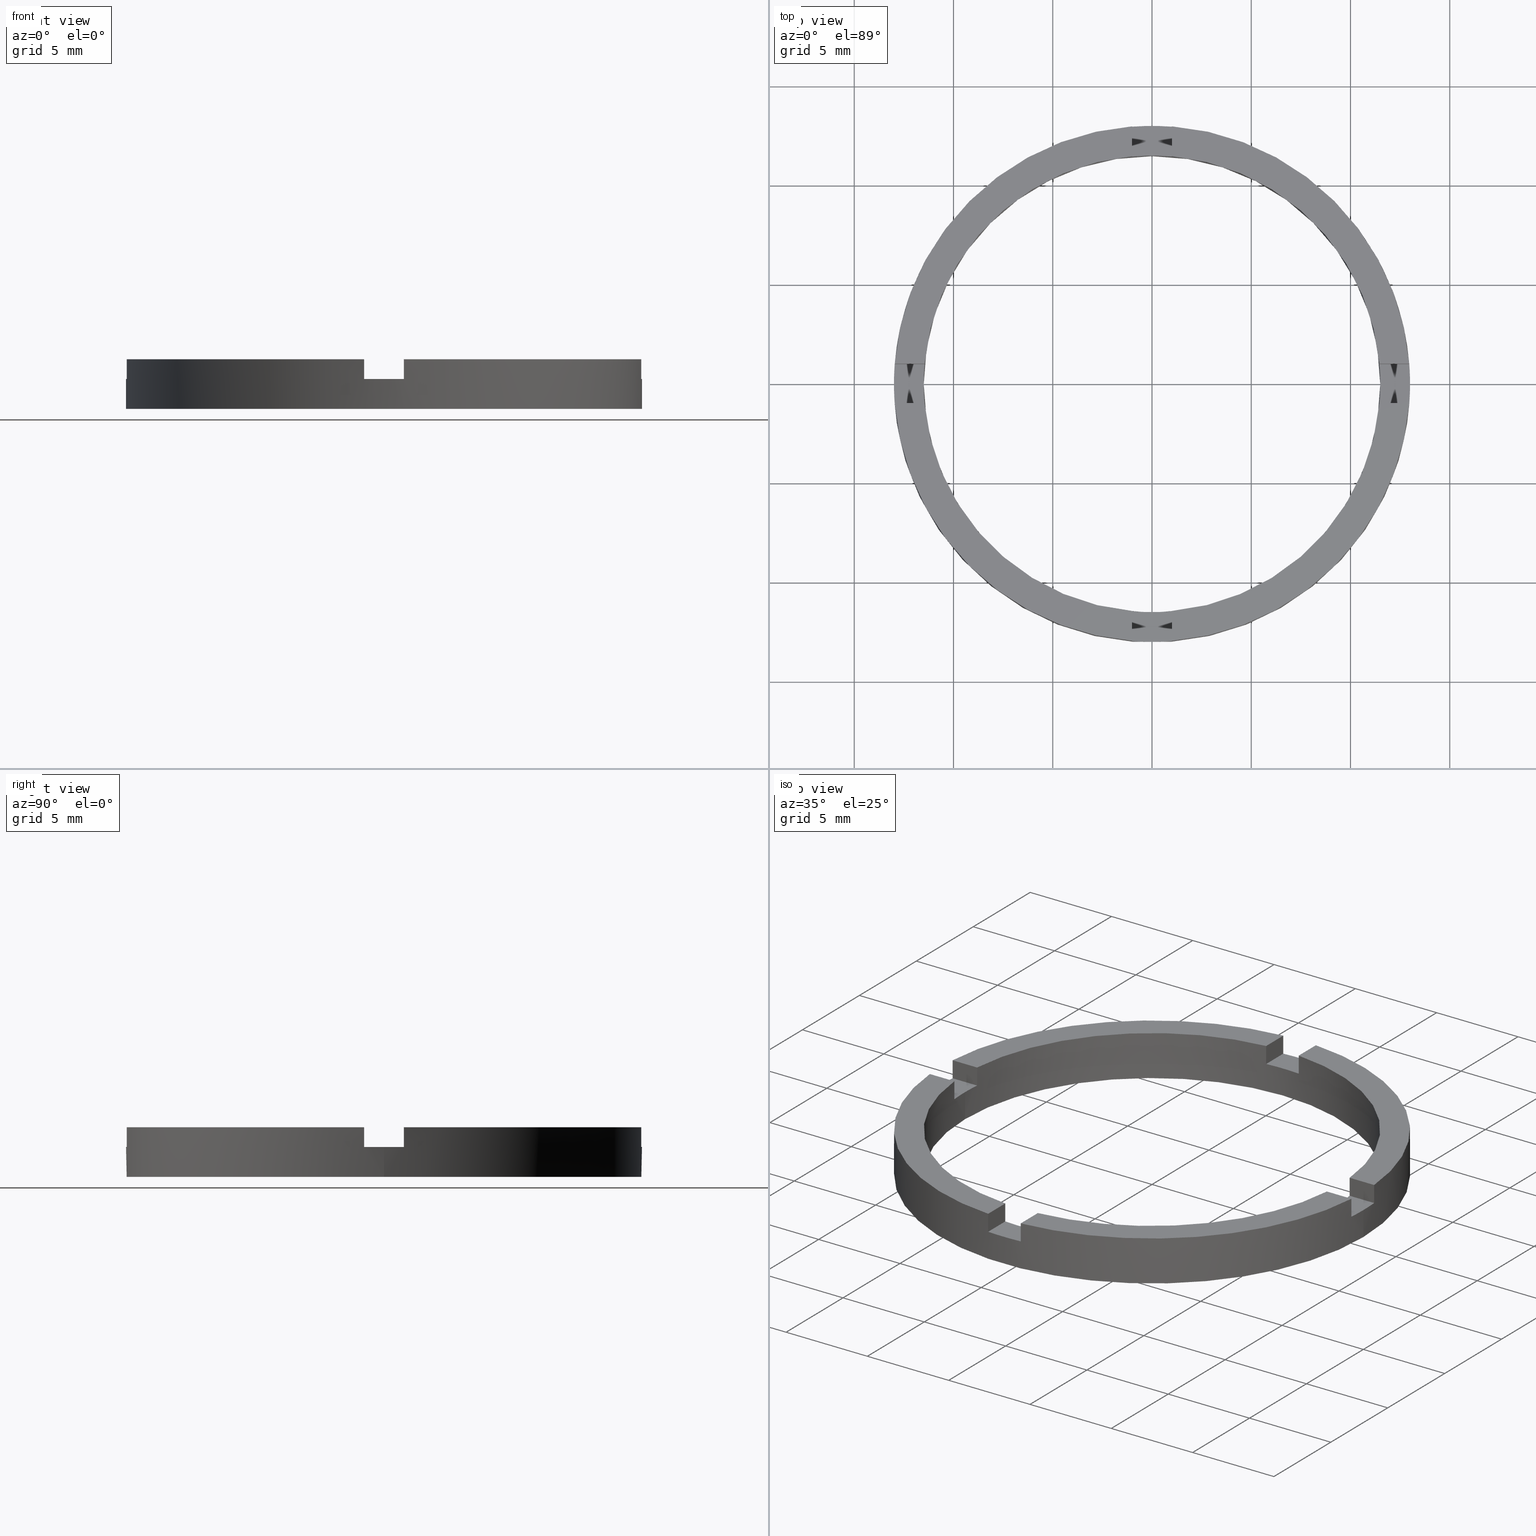
[diagram: canonical four-view strip — front | top / right | iso, engineering-drawing reading convention]
A machine part, canonical four-view strip (front | top / right | iso — engineering-drawing reading convention). The complete STEP part file that produces these views, byte-faithful:
ISO-10303-21;
HEADER;
FILE_DESCRIPTION (( 'STEP AP203' ),
    '1' );
FILE_NAME ('514059.step',
    '2024-12-26T02:33:38',
    ( 'MSI' ),
    ( '' ),
    'SwSTEP 2.0',
    'SolidWorks 2020',
    '' );
FILE_SCHEMA (( 'CONFIG_CONTROL_DESIGN' ));
ENDSEC;

DATA;
#1 = DIRECTION ( 'NONE',  ( 1.000000000000000000, 0.000000000000000000, -0.000000000000000000 ) ) ;
#2 = VECTOR ( 'NONE', #659, 1000.000000000000000 ) ;
#3 = VECTOR ( 'NONE', #56, 1000.000000000000000 ) ;
#4 = CARTESIAN_POINT ( 'NONE',  ( -12.96148139681571898, 0.9999999999999776845, 1.500000000000000000 ) ) ;
#5 = LINE ( 'NONE', #248, #3 ) ;
#6 = CIRCLE ( 'NONE', #585, 12.99999999999999822 ) ;
#7 = ADVANCED_FACE ( 'NONE', ( #716 ), #245, .F. ) ;
#8 = APPROVAL_ROLE ( '' ) ;
#9 = LINE ( 'NONE', #24, #232 ) ;
#10 = FACE_OUTER_BOUND ( 'NONE', #440, .T. ) ;
#11 = UNCERTAINTY_MEASURE_WITH_UNIT (LENGTH_MEASURE( 1.000000000000000082E-05 ), #596, 'distance_accuracy_value', 'NONE');
#12 = VECTOR ( 'NONE', #390, 1000.000000000000000 ) ;
#13 = CARTESIAN_POINT ( 'NONE',  ( 0.000000000000000000, 0.000000000000000000, 2.500000000000000000 ) ) ;
#14 = CIRCLE ( 'NONE', #321, 11.50000000000000000 ) ;
#15 = DIRECTION ( 'NONE',  ( 0.000000000000000000, 0.000000000000000000, -1.000000000000000000 ) ) ;
#16 = ADVANCED_FACE ( 'NONE', ( #462 ), #176, .T. ) ;
#17 = LINE ( 'NONE', #649, #2 ) ;
#18 = AXIS2_PLACEMENT_3D ( 'NONE', #191, #681, #197 ) ;
#19 = DIRECTION ( 'NONE',  ( -1.000000000000000000, 0.000000000000000000, 0.000000000000000000 ) ) ;
#20 = CARTESIAN_POINT ( 'NONE',  ( 0.000000000000000000, 0.000000000000000000, 2.500000000000000000 ) ) ;
#21 = DIRECTION ( 'NONE',  ( -0.000000000000000000, 0.000000000000000000, 1.000000000000000000 ) ) ;
#22 = DIRECTION ( 'NONE',  ( 1.000000000000000000, 0.000000000000000000, -0.000000000000000000 ) ) ;
#23 = CARTESIAN_POINT ( 'NONE',  ( 0.9999999999998352429, -3.000000000000176303, 2.500000000000000000 ) ) ;
#24 = CARTESIAN_POINT ( 'NONE',  ( 12.96148139681570655, -1.000000000000159872, 2.500000000000000000 ) ) ;
#25 = EDGE_CURVE ( 'NONE', #164, #709, #720, .T. ) ;
#26 = ADVANCED_FACE ( 'NONE', ( #194 ), #193, .T. ) ;
#27 = CARTESIAN_POINT ( 'NONE',  ( 0.000000000000000000, 0.000000000000000000, 0.000000000000000000 ) ) ;
#28 = LINE ( 'NONE', #639, #557 ) ;
#29 = CARTESIAN_POINT ( 'NONE',  ( 11.50000000000000000, 1.408343819019456176E-15, 1.500000000000000000 ) ) ;
#30 = CIRCLE ( 'NONE', #567, 12.99999999999999822 ) ;
#31 = CARTESIAN_POINT ( 'NONE',  ( -1.000000000000024647, 12.96148139681571543, 2.500000000000000000 ) ) ;
#32 = AXIS2_PLACEMENT_3D ( 'NONE', #295, #398, #591 ) ;
#33 = VECTOR ( 'NONE', #442, 1000.000000000000000 ) ;
#34 = CARTESIAN_POINT ( 'NONE',  ( 0.000000000000000000, 0.000000000000000000, 2.500000000000000000 ) ) ;
#35 = LINE ( 'NONE', #359, #33 ) ;
#36 = CARTESIAN_POINT ( 'NONE',  ( -3.000000000000179412, -1.000000000000020650, 1.500000000000000000 ) ) ;
#37 = CARTESIAN_POINT ( 'NONE',  ( -12.96148139681571543, -1.000000000000022427, 2.500000000000000000 ) ) ;
#38 = VECTOR ( 'NONE', #236, 1000.000000000000000 ) ;
#39 = VECTOR ( 'NONE', #267, 1000.000000000000000 ) ;
#40 = CC_DESIGN_DATE_AND_TIME_ASSIGNMENT ( #405, #587, ( #688 ) ) ;
#41 = CIRCLE ( 'NONE', #481, 11.50000000000000000 ) ;
#42 = AXIS2_PLACEMENT_3D ( 'NONE', #749, #386, #460 ) ;
#43 = LINE ( 'NONE', #36, #314 ) ;
#44 =( NAMED_UNIT ( * ) SI_UNIT ( $, .STERADIAN. ) SOLID_ANGLE_UNIT ( ) );
#45 = EDGE_CURVE ( 'NONE', #461, #382, #725, .T. ) ;
#46 = CIRCLE ( 'NONE', #746, 11.50000000000000000 ) ;
#47 = DIRECTION ( 'NONE',  ( 0.000000000000000000, 0.000000000000000000, 1.000000000000000000 ) ) ;
#48 = DIRECTION ( 'NONE',  ( 1.000000000000000000, 0.000000000000000000, 0.000000000000000000 ) ) ;
#49 = DIRECTION ( 'NONE',  ( 1.000000000000000000, 0.000000000000000000, -0.000000000000000000 ) ) ;
#50 = AXIS2_PLACEMENT_3D ( 'NONE', #53, #650, #335 ) ;
#51 = EDGE_CURVE ( 'NONE', #616, #680, #471, .T. ) ;
#52 = DIRECTION ( 'NONE',  ( 0.000000000000000000, 0.000000000000000000, 1.000000000000000000 ) ) ;
#53 = CARTESIAN_POINT ( 'NONE',  ( 0.000000000000000000, 0.000000000000000000, 0.000000000000000000 ) ) ;
#54 = ADVANCED_FACE ( 'NONE', ( #472 ), #212, .F. ) ;
#55 = AXIS2_PLACEMENT_3D ( 'NONE', #555, #646, #48 ) ;
#56 = DIRECTION ( 'NONE',  ( 1.000000000000000000, 4.336808689942017120E-17, 0.000000000000000000 ) ) ;
#57 = EDGE_CURVE ( 'NONE', #203, #714, #200, .T. ) ;
#58 = ADVANCED_FACE ( 'NONE', ( #751 ), #403, .T. ) ;
#59 = PLANE ( 'NONE',  #690 ) ;
#60 = DIRECTION ( 'NONE',  ( 1.000000000000000000, 0.000000000000000000, -0.000000000000000000 ) ) ;
#61 = CARTESIAN_POINT ( 'NONE',  ( -11.45643923738960090, 0.9999999999999779066, 2.500000000000000000 ) ) ;
#62 = AXIS2_PLACEMENT_3D ( 'NONE', #69, #764, #202 ) ;
#63 = DIRECTION ( 'NONE',  ( 1.000000000000000000, 0.000000000000000000, 0.000000000000000000 ) ) ;
#64 = DIRECTION ( 'NONE',  ( 1.000000000000000000, 0.000000000000000000, 0.000000000000000000 ) ) ;
#65 = CARTESIAN_POINT ( 'NONE',  ( 0.000000000000000000, 0.000000000000000000, 1.500000000000000000 ) ) ;
#66 = EDGE_CURVE ( 'NONE', #718, #90, #222, .T. ) ;
#67 = DIRECTION ( 'NONE',  ( 1.000000000000000000, 0.000000000000000000, 0.000000000000000000 ) ) ;
#68 = DIRECTION ( 'NONE',  ( 0.000000000000000000, 0.000000000000000000, 1.000000000000000000 ) ) ;
#69 = CARTESIAN_POINT ( 'NONE',  ( 0.000000000000000000, 0.000000000000000000, 1.500000000000000000 ) ) ;
#70 = CC_DESIGN_DATE_AND_TIME_ASSIGNMENT ( #393, #712, ( #640 ) ) ;
#71 = CARTESIAN_POINT ( 'NONE',  ( 0.000000000000000000, 0.000000000000000000, 2.500000000000000000 ) ) ;
#72 = DIRECTION ( 'NONE',  ( 1.301042606982605074E-16, -1.000000000000000000, 0.000000000000000000 ) ) ;
#73 = AXIS2_PLACEMENT_3D ( 'NONE', #673, #21, #67 ) ;
#74 = EDGE_CURVE ( 'NONE', #110, #430, #228, .T. ) ;
#75 = CARTESIAN_POINT ( 'NONE',  ( 0.9999999999999753530, 12.96148139681571898, 1.500000000000000000 ) ) ;
#76 = CC_DESIGN_APPROVAL ( #117, ( #640 ) ) ;
#77 = EDGE_CURVE ( 'NONE', #714, #612, #224, .T. ) ;
#78 = DIRECTION ( 'NONE',  ( 0.000000000000000000, 0.000000000000000000, 1.000000000000000000 ) ) ;
#79 = DIRECTION ( 'NONE',  ( 1.000000000000000000, 0.000000000000000000, 0.000000000000000000 ) ) ;
#80 = ORIENTED_EDGE ( 'NONE', *, *, #373, .F. ) ;
#81 = DIRECTION ( 'NONE',  ( 0.000000000000000000, 0.000000000000000000, 1.000000000000000000 ) ) ;
#82 = CARTESIAN_POINT ( 'NONE',  ( 0.000000000000000000, 0.000000000000000000, 0.000000000000000000 ) ) ;
#83 = EDGE_LOOP ( 'NONE', ( #408, #366, #627, #340 ) ) ;
#84 = ORIENTED_EDGE ( 'NONE', *, *, #648, .F. ) ;
#85 = EDGE_CURVE ( 'NONE', #375, #413, #759, .T. ) ;
#86 = EDGE_LOOP ( 'NONE', ( #439, #689 ) ) ;
#87 = VERTEX_POINT ( 'NONE', #4 ) ;
#88 = ORIENTED_EDGE ( 'NONE', *, *, #529, .T. ) ;
#89 = CARTESIAN_POINT ( 'NONE',  ( 0.000000000000000000, 0.000000000000000000, 1.500000000000000000 ) ) ;
#90 = VERTEX_POINT ( 'NONE', #179 ) ;
#91 = ORIENTED_EDGE ( 'NONE', *, *, #284, .T. ) ;
#92 = DIRECTION ( 'NONE',  ( -0.000000000000000000, -0.000000000000000000, -1.000000000000000000 ) ) ;
#93 = ORIENTED_EDGE ( 'NONE', *, *, #45, .F. ) ;
#94 = AXIS2_PLACEMENT_3D ( 'NONE', #256, #318, #22 ) ;
#95 = ORIENTED_EDGE ( 'NONE', *, *, #85, .T. ) ;
#96 = CARTESIAN_POINT ( 'NONE',  ( -1.000000000000163647, -11.45643923738958669, 2.500000000000000000 ) ) ;
#97 = ORIENTED_EDGE ( 'NONE', *, *, #669, .T. ) ;
#98 = ORIENTED_EDGE ( 'NONE', *, *, #74, .F. ) ;
#99 = CARTESIAN_POINT ( 'NONE',  ( 11.45643923738961334, 0.9999999999998400169, 2.500000000000000000 ) ) ;
#100 = ORIENTED_EDGE ( 'NONE', *, *, #240, .T. ) ;
#101 = ORIENTED_EDGE ( 'NONE', *, *, #25, .F. ) ;
#102 = CARTESIAN_POINT ( 'NONE',  ( 0.000000000000000000, 0.000000000000000000, 1.500000000000000000 ) ) ;
#103 = PERSON_AND_ORGANIZATION_ROLE ( 'design_owner' ) ;
#104 = ORIENTED_EDGE ( 'NONE', *, *, #294, .F. ) ;
#105 = ORIENTED_EDGE ( 'NONE', *, *, #669, .F. ) ;
#106 = ORIENTED_EDGE ( 'NONE', *, *, #706, .T. ) ;
#107 = ADVANCED_FACE ( 'NONE', ( #747 ), #429, .F. ) ;
#108 = ORIENTED_EDGE ( 'NONE', *, *, #247, .F. ) ;
#109 = ORIENTED_EDGE ( 'NONE', *, *, #765, .F. ) ;
#110 = VERTEX_POINT ( 'NONE', #354 ) ;
#111 = EDGE_LOOP ( 'NONE', ( #93, #357, #656, #654, #172, #402, #133, #697, #101, #446, #95, #362 ) ) ;
#112 = EDGE_LOOP ( 'NONE', ( #80, #134, #379, #623 ) ) ;
#113 = ADVANCED_FACE ( 'NONE', ( #495 ), #457, .T. ) ;
#114 = CARTESIAN_POINT ( 'NONE',  ( 0.000000000000000000, 0.000000000000000000, 1.500000000000000000 ) ) ;
#115 = CARTESIAN_POINT ( 'NONE',  ( -12.96148139681571543, -1.000000000000022427, 1.500000000000000000 ) ) ;
#116 = ORIENTED_EDGE ( 'NONE', *, *, #464, .T. ) ;
#117 = APPROVAL ( #296, 'δָ��' ) ;
#118 = EDGE_CURVE ( 'NONE', #375, #423, #493, .T. ) ;
#119 = PLANE ( 'NONE',  #241 ) ;
#120 = AXIS2_PLACEMENT_3D ( 'NONE', #660, #739, #317 ) ;
#121 = CARTESIAN_POINT ( 'NONE',  ( -3.000000000000179412, -1.000000000000020650, 2.500000000000000000 ) ) ;
#122 = EDGE_CURVE ( 'NONE', #160, #434, #755, .T. ) ;
#123 = CALENDAR_DATE ( 2024, 26, 12 ) ;
#124 = PERSON_AND_ORGANIZATION ( #437, #663 ) ;
#125 = ORIENTED_EDGE ( 'NONE', *, *, #118, .F. ) ;
#126 = DIRECTION ( 'NONE',  ( -1.301042606982605074E-16, 1.000000000000000000, 0.000000000000000000 ) ) ;
#127 = APPROVAL_DATE_TIME ( #653, #117 ) ;
#128 = ORIENTED_EDGE ( 'NONE', *, *, #719, .T. ) ;
#129 = EDGE_CURVE ( 'NONE', #406, #678, #215, .T. ) ;
#130 = LOCAL_TIME ( 10, 33, 38.00000000000000000, #651 ) ;
#131 = ORIENTED_EDGE ( 'NONE', *, *, #713, .F. ) ;
#132 = APPROVAL_PERSON_ORGANIZATION ( #657, #702, #8 ) ;
#133 = ORIENTED_EDGE ( 'NONE', *, *, #448, .F. ) ;
#134 = ORIENTED_EDGE ( 'NONE', *, *, #758, .F. ) ;
#135 = CARTESIAN_POINT ( 'NONE',  ( 0.9999999999999753530, 12.96148139681571898, 2.500000000000000000 ) ) ;
#136 = PERSON_AND_ORGANIZATION ( #437, #663 ) ;
#137 = ORIENTED_EDGE ( 'NONE', *, *, #566, .F. ) ;
#138 = APPROVAL_PERSON_ORGANIZATION ( #140, #727, #550 ) ;
#139 = ORIENTED_EDGE ( 'NONE', *, *, #129, .F. ) ;
#140 = PERSON_AND_ORGANIZATION ( #437, #663 ) ;
#141 = VERTEX_POINT ( 'NONE', #279 ) ;
#142 = PERSON_AND_ORGANIZATION ( #437, #663 ) ;
#143 = ORIENTED_EDGE ( 'NONE', *, *, #692, .T. ) ;
#144 = DIRECTION ( 'NONE',  ( 0.000000000000000000, 0.000000000000000000, 1.000000000000000000 ) ) ;
#145 = COORDINATED_UNIVERSAL_TIME_OFFSET ( 8, 0, .AHEAD. ) ;
#146 = APPROVAL_DATE_TIME ( #399, #727 ) ;
#147 = VERTEX_POINT ( 'NONE', #620 ) ;
#148 = ORIENTED_EDGE ( 'NONE', *, *, #411, .F. ) ;
#149 = CARTESIAN_POINT ( 'NONE',  ( 0.000000000000000000, 0.000000000000000000, 1.500000000000000000 ) ) ;
#150 = DIRECTION ( 'NONE',  ( -1.000000000000000000, -1.301042606982605074E-16, 0.000000000000000000 ) ) ;
#151 = VERTEX_POINT ( 'NONE', #387 ) ;
#152 = CARTESIAN_POINT ( 'NONE',  ( 0.000000000000000000, 0.000000000000000000, 1.500000000000000000 ) ) ;
#153 = ORIENTED_EDGE ( 'NONE', *, *, #459, .T. ) ;
#154 = CARTESIAN_POINT ( 'NONE',  ( 11.50000000000000000, 1.408343819019456176E-15, 0.000000000000000000 ) ) ;
#155 = ORIENTED_EDGE ( 'NONE', *, *, #337, .T. ) ;
#156 = ORIENTED_EDGE ( 'NONE', *, *, #74, .T. ) ;
#157 = ORIENTED_EDGE ( 'NONE', *, *, #240, .F. ) ;
#158 = CARTESIAN_POINT ( 'NONE',  ( 0.000000000000000000, 0.000000000000000000, 2.500000000000000000 ) ) ;
#159 = VERTEX_POINT ( 'NONE', #559 ) ;
#160 = VERTEX_POINT ( 'NONE', #372 ) ;
#161 = ORIENTED_EDGE ( 'NONE', *, *, #563, .T. ) ;
#162 = VERTEX_POINT ( 'NONE', #384 ) ;
#163 = APPROVAL_STATUS ( 'not_yet_approved' ) ;
#164 = VERTEX_POINT ( 'NONE', #599 ) ;
#165 = ORIENTED_EDGE ( 'NONE', *, *, #293, .T. ) ;
#166 = ORIENTED_EDGE ( 'NONE', *, *, #502, .F. ) ;
#167 = ORIENTED_EDGE ( 'NONE', *, *, #66, .T. ) ;
#168 = ORIENTED_EDGE ( 'NONE', *, *, #332, .T. ) ;
#169 = EDGE_CURVE ( 'NONE', #87, #619, #229, .T. ) ;
#170 = AXIS2_PLACEMENT_3D ( 'NONE', #730, #301, #482 ) ;
#171 = APPLICATION_CONTEXT ( 'configuration controlled 3d designs of mechanical parts and assemblies' ) ;
#172 = ORIENTED_EDGE ( 'NONE', *, *, #529, .F. ) ;
#173 = CARTESIAN_POINT ( 'NONE',  ( -11.50000000000000000, 0.000000000000000000, 2.500000000000000000 ) ) ;
#174 = ORIENTED_EDGE ( 'NONE', *, *, #227, .T. ) ;
#175 = AXIS2_PLACEMENT_3D ( 'NONE', #34, #47, #1 ) ;
#176 = PLANE ( 'NONE',  #480 ) ;
#177 = ADVANCED_FACE ( 'NONE', ( #231 ), #754, .T. ) ;
#178 = APPROVAL_STATUS ( 'not_yet_approved' ) ;
#179 = CARTESIAN_POINT ( 'NONE',  ( 0.9999999999998363531, -11.45643923738961334, 1.500000000000000000 ) ) ;
#180 = VERTEX_POINT ( 'NONE', #75 ) ;
#181 = VERTEX_POINT ( 'NONE', #189 ) ;
#182 = DIRECTION ( 'NONE',  ( 0.000000000000000000, 0.000000000000000000, 1.000000000000000000 ) ) ;
#183 = DIRECTION ( 'NONE',  ( 0.000000000000000000, 0.000000000000000000, 1.000000000000000000 ) ) ;
#184 = SHAPE_DEFINITION_REPRESENTATION ( #644, #275 ) ;
#185 = AXIS2_PLACEMENT_3D ( 'NONE', #733, #483, #250 ) ;
#186 = AXIS2_PLACEMENT_3D ( 'NONE', #82, #282, #760 ) ;
#187 =( GEOMETRIC_REPRESENTATION_CONTEXT ( 3 ) GLOBAL_UNCERTAINTY_ASSIGNED_CONTEXT ( ( #11 ) ) GLOBAL_UNIT_ASSIGNED_CONTEXT ( ( #596, #223, #44 ) ) REPRESENTATION_CONTEXT ( 'NONE', 'WORKASPACE' ) );
#188 = EDGE_LOOP ( 'NONE', ( #377, #345, #128, #435, #487, #100 ) ) ;
#189 = CARTESIAN_POINT ( 'NONE',  ( 12.96148139681570655, -1.000000000000159872, 2.500000000000000000 ) ) ;
#190 = DIRECTION ( 'NONE',  ( 0.000000000000000000, 0.000000000000000000, 1.000000000000000000 ) ) ;
#191 = CARTESIAN_POINT ( 'NONE',  ( 0.000000000000000000, 0.000000000000000000, 1.500000000000000000 ) ) ;
#192 = CC_DESIGN_SECURITY_CLASSIFICATION ( #640, ( #589 ) ) ;
#193 = PLANE ( 'NONE',  #94 ) ;
#194 = FACE_OUTER_BOUND ( 'NONE', #209, .T. ) ;
#195 = ORIENTED_EDGE ( 'NONE', *, *, #77, .T. ) ;
#196 = VECTOR ( 'NONE', #369, 1000.000000000000000 ) ;
#197 = DIRECTION ( 'NONE',  ( 1.000000000000000000, 0.000000000000000000, 0.000000000000000000 ) ) ;
#198 = CARTESIAN_POINT ( 'NONE',  ( -11.45643923738959735, -1.000000000000022204, 2.500000000000000000 ) ) ;
#199 = VECTOR ( 'NONE', #233, 1000.000000000000000 ) ;
#200 = LINE ( 'NONE', #717, #498 ) ;
#201 = VERTEX_POINT ( 'NONE', #519 ) ;
#202 = DIRECTION ( 'NONE',  ( 1.000000000000000000, 0.000000000000000000, 0.000000000000000000 ) ) ;
#203 = VERTEX_POINT ( 'NONE', #613 ) ;
#204 = VECTOR ( 'NONE', #72, 1000.000000000000000 ) ;
#205 = ADVANCED_FACE ( 'NONE', ( #489 ), #770, .F. ) ;
#206 = CARTESIAN_POINT ( 'NONE',  ( -1.000000000000024647, 11.45643923738959735, 1.500000000000000000 ) ) ;
#207 = PLANE ( 'NONE',  #353 ) ;
#208 = ORIENTED_EDGE ( 'NONE', *, *, #388, .F. ) ;
#209 = EDGE_LOOP ( 'NONE', ( #378, #109, #703, #116 ) ) ;
#210 = DIRECTION ( 'NONE',  ( 0.000000000000000000, 0.000000000000000000, 1.000000000000000000 ) ) ;
#211 = DIRECTION ( 'NONE',  ( 1.000000000000000000, -0.000000000000000000, 0.000000000000000000 ) ) ;
#212 = CYLINDRICAL_SURFACE ( 'NONE', #750, 11.50000000000000000 ) ;
#213 = CARTESIAN_POINT ( 'NONE',  ( 12.99999999999999822, 1.592040838891558898E-15, 2.500000000000000000 ) ) ;
#214 = DIRECTION ( 'NONE',  ( 0.000000000000000000, 0.000000000000000000, 1.000000000000000000 ) ) ;
#215 = LINE ( 'NONE', #572, #221 ) ;
#216 = DIRECTION ( 'NONE',  ( 0.000000000000000000, 0.000000000000000000, 1.000000000000000000 ) ) ;
#217 = DIRECTION ( 'NONE',  ( 1.301042606982605074E-16, -1.000000000000000000, 0.000000000000000000 ) ) ;
#218 = CIRCLE ( 'NONE', #427, 12.99999999999999822 ) ;
#219 = DIRECTION ( 'NONE',  ( 0.000000000000000000, 0.000000000000000000, 1.000000000000000000 ) ) ;
#220 = DIRECTION ( 'NONE',  ( -0.000000000000000000, -0.000000000000000000, -1.000000000000000000 ) ) ;
#221 = VECTOR ( 'NONE', #510, 1000.000000000000000 ) ;
#222 = LINE ( 'NONE', #346, #757 ) ;
#223 =( NAMED_UNIT ( * ) PLANE_ANGLE_UNIT ( ) SI_UNIT ( $, .RADIAN. ) );
#224 = LINE ( 'NONE', #99, #500 ) ;
#225 = DIRECTION ( 'NONE',  ( -1.000000000000000000, 0.000000000000000000, 0.000000000000000000 ) ) ;
#226 = AXIS2_PLACEMENT_3D ( 'NONE', #505, #144, #561 ) ;
#227 = EDGE_CURVE ( 'NONE', #87, #159, #218, .T. ) ;
#228 = LINE ( 'NONE', #590, #494 ) ;
#229 = LINE ( 'NONE', #324, #492 ) ;
#230 = PERSON_AND_ORGANIZATION_ROLE ( 'design_supplier' ) ;
#231 = FACE_OUTER_BOUND ( 'NONE', #637, .T. ) ;
#232 = VECTOR ( 'NONE', #68, 1000.000000000000000 ) ;
#233 = DIRECTION ( 'NONE',  ( -0.000000000000000000, -0.000000000000000000, -1.000000000000000000 ) ) ;
#234 = PRODUCT_RELATED_PRODUCT_CATEGORY ( 'detail', '', ( #694 ) ) ;
#235 = LINE ( 'NONE', #622, #252 ) ;
#236 = DIRECTION ( 'NONE',  ( 0.000000000000000000, 1.000000000000000000, 0.000000000000000000 ) ) ;
#237 = CIRCLE ( 'NONE', #226, 11.50000000000000000 ) ;
#238 = CARTESIAN_POINT ( 'NONE',  ( 0.000000000000000000, 0.000000000000000000, 1.500000000000000000 ) ) ;
#239 = LINE ( 'NONE', #452, #776 ) ;
#240 = EDGE_CURVE ( 'NONE', #721, #147, #503, .T. ) ;
#241 = AXIS2_PLACEMENT_3D ( 'NONE', #13, #190, #60 ) ;
#242 = CARTESIAN_POINT ( 'NONE',  ( 0.000000000000000000, 0.000000000000000000, 2.500000000000000000 ) ) ;
#243 = FACE_OUTER_BOUND ( 'NONE', #636, .T. ) ;
#244 = AXIS2_PLACEMENT_3D ( 'NONE', #149, #216, #287 ) ;
#245 = PLANE ( 'NONE',  #290 ) ;
#246 = VECTOR ( 'NONE', #214, 1000.000000000000000 ) ;
#247 = EDGE_CURVE ( 'NONE', #709, #619, #273, .T. ) ;
#248 = CARTESIAN_POINT ( 'NONE',  ( 2.999999999999992450, -1.000000000000160316, 2.500000000000000000 ) ) ;
#249 = CARTESIAN_POINT ( 'NONE',  ( 0.000000000000000000, 0.000000000000000000, 2.500000000000000000 ) ) ;
#250 = DIRECTION ( 'NONE',  ( -1.000000000000000000, -4.336808689942017120E-17, 0.000000000000000000 ) ) ;
#251 = VECTOR ( 'NONE', #582, 1000.000000000000000 ) ;
#252 = VECTOR ( 'NONE', #701, 1000.000000000000000 ) ;
#253 = EDGE_CURVE ( 'NONE', #606, #90, #533, .T. ) ;
#254 = DIRECTION ( 'NONE',  ( 0.000000000000000000, 0.000000000000000000, 1.000000000000000000 ) ) ;
#255 = LINE ( 'NONE', #532, #251 ) ;
#256 = CARTESIAN_POINT ( 'NONE',  ( 0.000000000000000000, 0.000000000000000000, 2.500000000000000000 ) ) ;
#257 = LINE ( 'NONE', #135, #524 ) ;
#258 = DIRECTION ( 'NONE',  ( 0.000000000000000000, 0.000000000000000000, 1.000000000000000000 ) ) ;
#259 = LINE ( 'NONE', #453, #777 ) ;
#260 = ADVANCED_FACE ( 'NONE', ( #539 ), #334, .F. ) ;
#261 = DIRECTION ( 'NONE',  ( 1.000000000000000000, 0.000000000000000000, 0.000000000000000000 ) ) ;
#262 = DIRECTION ( 'NONE',  ( 1.000000000000000000, 0.000000000000000000, 0.000000000000000000 ) ) ;
#263 = LINE ( 'NONE', #376, #531 ) ;
#264 = DIRECTION ( 'NONE',  ( 0.000000000000000000, 0.000000000000000000, 1.000000000000000000 ) ) ;
#265 = FACE_OUTER_BOUND ( 'NONE', #356, .T. ) ;
#266 = LINE ( 'NONE', #454, #268 ) ;
#267 = DIRECTION ( 'NONE',  ( -0.000000000000000000, -0.000000000000000000, -1.000000000000000000 ) ) ;
#268 = VECTOR ( 'NONE', #696, 1000.000000000000000 ) ;
#269 = ADVANCED_FACE ( 'NONE', ( #10 ), #476, .F. ) ;
#270 = CC_DESIGN_PERSON_AND_ORGANIZATION_ASSIGNMENT ( #142, #343, ( #589 ) ) ;
#271 = FACE_OUTER_BOUND ( 'NONE', #724, .T. ) ;
#272 = AXIS2_PLACEMENT_3D ( 'NONE', #274, #327, #579 ) ;
#273 = LINE ( 'NONE', #534, #540 ) ;
#274 = CARTESIAN_POINT ( 'NONE',  ( 0.000000000000000000, 0.000000000000000000, 0.000000000000000000 ) ) ;
#275 = ADVANCED_BREP_SHAPE_REPRESENTATION ( '514059', ( #604, #50 ), #187 ) ;
#276 = VECTOR ( 'NONE', #528, 1000.000000000000000 ) ;
#277 = LINE ( 'NONE', #96, #544 ) ;
#278 = ADVANCED_FACE ( 'NONE', ( #543 ), #780, .T. ) ;
#279 = CARTESIAN_POINT ( 'NONE',  ( -1.000000000000163425, -12.96148139681570655, 1.500000000000000000 ) ) ;
#280 = CIRCLE ( 'NONE', #244, 12.99999999999999822 ) ;
#281 = DIRECTION ( 'NONE',  ( 1.301042606982605074E-16, -1.000000000000000000, 0.000000000000000000 ) ) ;
#282 = DIRECTION ( 'NONE',  ( 0.000000000000000000, 0.000000000000000000, 1.000000000000000000 ) ) ;
#283 = CARTESIAN_POINT ( 'NONE',  ( -1.000000000000163425, -12.96148139681570655, 2.500000000000000000 ) ) ;
#284 = EDGE_CURVE ( 'NONE', #698, #162, #277, .T. ) ;
#285 = CIRCLE ( 'NONE', #120, 12.99999999999999822 ) ;
#286 = FACE_OUTER_BOUND ( 'NONE', #111, .T. ) ;
#287 = DIRECTION ( 'NONE',  ( 1.000000000000000000, 0.000000000000000000, 0.000000000000000000 ) ) ;
#288 = CARTESIAN_POINT ( 'NONE',  ( 2.999999999999992450, -1.000000000000160316, 1.500000000000000000 ) ) ;
#289 = CIRCLE ( 'NONE', #535, 11.50000000000000000 ) ;
#290 = AXIS2_PLACEMENT_3D ( 'NONE', #431, #726, #308 ) ;
#291 = DIRECTION ( 'NONE',  ( 0.000000000000000000, -0.000000000000000000, 1.000000000000000000 ) ) ;
#292 = CARTESIAN_POINT ( 'NONE',  ( -11.50000000000000000, 0.000000000000000000, 1.500000000000000000 ) ) ;
#293 = EDGE_CURVE ( 'NONE', #721, #461, #14, .T. ) ;
#294 = EDGE_CURVE ( 'NONE', #147, #445, #280, .T. ) ;
#295 = CARTESIAN_POINT ( 'NONE',  ( -3.000000000000179412, 0.9999999999999794609, 1.500000000000000000 ) ) ;
#296 = APPROVAL_STATUS ( 'not_yet_approved' ) ;
#297 = AXIS2_PLACEMENT_3D ( 'NONE', #328, #264, #364 ) ;
#298 = LINE ( 'NONE', #592, #38 ) ;
#299 = DIRECTION ( 'NONE',  ( -0.000000000000000000, -1.000000000000000000, -0.000000000000000000 ) ) ;
#300 = EDGE_CURVE ( 'NONE', #164, #87, #536, .T. ) ;
#301 = DIRECTION ( 'NONE',  ( 0.000000000000000000, 0.000000000000000000, 1.000000000000000000 ) ) ;
#302 = CIRCLE ( 'NONE', #422, 12.99999999999999822 ) ;
#303 = CC_DESIGN_APPROVAL ( #727, ( #688 ) ) ;
#304 = DIRECTION ( 'NONE',  ( 0.000000000000000000, 0.000000000000000000, 1.000000000000000000 ) ) ;
#305 = PERSON_AND_ORGANIZATION_ROLE ( 'creator' ) ;
#306 = CYLINDRICAL_SURFACE ( 'NONE', #374, 11.50000000000000000 ) ;
#307 = EDGE_CURVE ( 'NONE', #160, #180, #17, .T. ) ;
#308 = DIRECTION ( 'NONE',  ( 0.000000000000000000, 0.000000000000000000, 1.000000000000000000 ) ) ;
#309 = VECTOR ( 'NONE', #600, 1000.000000000000000 ) ;
#310 = ADVANCED_FACE ( 'NONE', ( #265 ), #59, .T. ) ;
#311 = APPLICATION_PROTOCOL_DEFINITION ( 'international standard', 'config_control_design', 1994, #171 ) ;
#312 = CIRCLE ( 'NONE', #466, 12.99999999999999822 ) ;
#313 = DIRECTION ( 'NONE',  ( 1.000000000000000000, 0.000000000000000000, 0.000000000000000000 ) ) ;
#314 = VECTOR ( 'NONE', #635, 1000.000000000000000 ) ;
#315 = LINE ( 'NONE', #23, #309 ) ;
#316 = EDGE_CURVE ( 'NONE', #404, #181, #5, .T. ) ;
#317 = DIRECTION ( 'NONE',  ( 1.000000000000000000, 0.000000000000000000, 0.000000000000000000 ) ) ;
#318 = DIRECTION ( 'NONE',  ( 0.000000000000000000, 0.000000000000000000, 1.000000000000000000 ) ) ;
#319 = CARTESIAN_POINT ( 'NONE',  ( -1.000000000000024647, 11.45643923738959735, 2.500000000000000000 ) ) ;
#320 = DIRECTION ( 'NONE',  ( -0.000000000000000000, 0.000000000000000000, 1.000000000000000000 ) ) ;
#321 = AXIS2_PLACEMENT_3D ( 'NONE', #102, #304, #79 ) ;
#322 = CARTESIAN_POINT ( 'NONE',  ( -11.50000000000000000, 0.000000000000000000, 0.000000000000000000 ) ) ;
#323 = DIRECTION ( 'NONE',  ( 1.000000000000000000, 0.000000000000000000, 0.000000000000000000 ) ) ;
#324 = CARTESIAN_POINT ( 'NONE',  ( -12.96148139681571898, 0.9999999999999776845, 2.500000000000000000 ) ) ;
#325 = CARTESIAN_POINT ( 'NONE',  ( -11.45643923738959735, -1.000000000000022204, 1.500000000000000000 ) ) ;
#326 = AXIS2_PLACEMENT_3D ( 'NONE', #392, #710, #581 ) ;
#327 = DIRECTION ( 'NONE',  ( 0.000000000000000000, 0.000000000000000000, 1.000000000000000000 ) ) ;
#328 = CARTESIAN_POINT ( 'NONE',  ( 0.000000000000000000, 0.000000000000000000, 2.500000000000000000 ) ) ;
#329 = CARTESIAN_POINT ( 'NONE',  ( 0.9999999999998365752, -12.96148139681572964, 1.500000000000000000 ) ) ;
#330 = CC_DESIGN_PERSON_AND_ORGANIZATION_ASSIGNMENT ( #136, #103, ( #694 ) ) ;
#331 = CARTESIAN_POINT ( 'NONE',  ( 0.9999999999998352429, -3.000000000000176303, 1.500000000000000000 ) ) ;
#332 = EDGE_CURVE ( 'NONE', #141, #396, #266, .T. ) ;
#333 = CARTESIAN_POINT ( 'NONE',  ( 0.000000000000000000, 0.000000000000000000, 2.500000000000000000 ) ) ;
#334 = PLANE ( 'NONE',  #32 ) ;
#335 = DIRECTION ( 'NONE',  ( 1.000000000000000000, 0.000000000000000000, 0.000000000000000000 ) ) ;
#336 = CARTESIAN_POINT ( 'NONE',  ( 11.45643923738958669, -1.000000000000160094, 1.500000000000000000 ) ) ;
#337 = EDGE_CURVE ( 'NONE', #159, #678, #6, .T. ) ;
#338 = ORIENTED_EDGE ( 'NONE', *, *, #380, .T. ) ;
#339 = DIRECTION ( 'NONE',  ( 0.000000000000000000, 0.000000000000000000, 1.000000000000000000 ) ) ;
#340 = ORIENTED_EDGE ( 'NONE', *, *, #169, .F. ) ;
#341 = ORIENTED_EDGE ( 'NONE', *, *, #284, .F. ) ;
#342 = ORIENTED_EDGE ( 'NONE', *, *, #459, .F. ) ;
#343 = PERSON_AND_ORGANIZATION_ROLE ( 'creator' ) ;
#344 = ADVANCED_FACE ( 'NONE', ( #271 ), #207, .F. ) ;
#345 = ORIENTED_EDGE ( 'NONE', *, *, #713, .T. ) ;
#346 = CARTESIAN_POINT ( 'NONE',  ( 0.9999999999998363531, -11.45643923738961334, 2.500000000000000000 ) ) ;
#347 = EDGE_LOOP ( 'NONE', ( #609, #195, #668, #731 ) ) ;
#348 = ORIENTED_EDGE ( 'NONE', *, *, #300, .T. ) ;
#349 = CC_DESIGN_APPROVAL ( #702, ( #589 ) ) ;
#350 = VERTEX_POINT ( 'NONE', #761 ) ;
#351 = PERSON_AND_ORGANIZATION_ROLE ( 'classification_officer' ) ;
#352 = ORIENTED_EDGE ( 'NONE', *, *, #421, .F. ) ;
#353 = AXIS2_PLACEMENT_3D ( 'NONE', #610, #211, #15 ) ;
#354 = CARTESIAN_POINT ( 'NONE',  ( -1.000000000000024647, 12.96148139681571543, 2.500000000000000000 ) ) ;
#355 = ADVANCED_FACE ( 'NONE', ( #538 ), #367, .T. ) ;
#356 = EDGE_LOOP ( 'NONE', ( #729, #153, #738, #469 ) ) ;
#357 = ORIENTED_EDGE ( 'NONE', *, *, #617, .T. ) ;
#358 = ORIENTED_EDGE ( 'NONE', *, *, #735, .T. ) ;
#359 = CARTESIAN_POINT ( 'NONE',  ( -12.99999999999999822, 0.000000000000000000, 2.500000000000000000 ) ) ;
#360 = PLANE ( 'NONE',  #552 ) ;
#361 = ORIENTED_EDGE ( 'NONE', *, *, #607, .T. ) ;
#362 = ORIENTED_EDGE ( 'NONE', *, *, #778, .F. ) ;
#363 = ORIENTED_EDGE ( 'NONE', *, *, #523, .F. ) ;
#364 = DIRECTION ( 'NONE',  ( 1.000000000000000000, 0.000000000000000000, -0.000000000000000000 ) ) ;
#365 = EDGE_CURVE ( 'NONE', #147, #181, #9, .T. ) ;
#366 = ORIENTED_EDGE ( 'NONE', *, *, #25, .T. ) ;
#367 = PLANE ( 'NONE',  #42 ) ;
#368 = ORIENTED_EDGE ( 'NONE', *, *, #541, .T. ) ;
#369 = DIRECTION ( 'NONE',  ( 0.000000000000000000, 0.000000000000000000, 1.000000000000000000 ) ) ;
#370 = VERTEX_POINT ( 'NONE', #198 ) ;
#371 = ORIENTED_EDGE ( 'NONE', *, *, #316, .F. ) ;
#372 = CARTESIAN_POINT ( 'NONE',  ( 0.9999999999999753530, 11.45643923738960090, 1.500000000000000000 ) ) ;
#373 = EDGE_CURVE ( 'NONE', #162, #396, #745, .T. ) ;
#374 = AXIS2_PLACEMENT_3D ( 'NONE', #249, #633, #497 ) ;
#375 = VERTEX_POINT ( 'NONE', #292 ) ;
#376 = CARTESIAN_POINT ( 'NONE',  ( 12.96148139681572964, 0.9999999999998402389, 2.500000000000000000 ) ) ;
#377 = ORIENTED_EDGE ( 'NONE', *, *, #294, .T. ) ;
#378 = ORIENTED_EDGE ( 'NONE', *, *, #735, .F. ) ;
#379 = ORIENTED_EDGE ( 'NONE', *, *, #541, .F. ) ;
#380 = EDGE_CURVE ( 'NONE', #350, #606, #475, .T. ) ;
#381 = DIRECTION ( 'NONE',  ( -1.000000000000000000, 0.000000000000000000, 0.000000000000000000 ) ) ;
#382 = VERTEX_POINT ( 'NONE', #154 ) ;
#383 = ORIENTED_EDGE ( 'NONE', *, *, #692, .F. ) ;
#384 = CARTESIAN_POINT ( 'NONE',  ( -1.000000000000163647, -11.45643923738958669, 2.500000000000000000 ) ) ;
#385 = DIRECTION ( 'NONE',  ( -0.000000000000000000, -0.000000000000000000, -1.000000000000000000 ) ) ;
#386 = DIRECTION ( 'NONE',  ( 0.000000000000000000, 0.000000000000000000, 1.000000000000000000 ) ) ;
#387 = CARTESIAN_POINT ( 'NONE',  ( 12.96148139681572964, 0.9999999999998402389, 1.500000000000000000 ) ) ;
#388 = EDGE_CURVE ( 'NONE', #721, #404, #737, .T. ) ;
#389 = CARTESIAN_POINT ( 'NONE',  ( 0.000000000000000000, 0.000000000000000000, 1.500000000000000000 ) ) ;
#390 = DIRECTION ( 'NONE',  ( -1.301042606982605074E-16, 1.000000000000000000, -0.000000000000000000 ) ) ;
#391 = COORDINATED_UNIVERSAL_TIME_OFFSET ( 8, 0, .AHEAD. ) ;
#392 = CARTESIAN_POINT ( 'NONE',  ( -3.000000000000179412, -1.000000000000020650, 1.500000000000000000 ) ) ;
#393 = DATE_AND_TIME ( #123, #416 ) ;
#394 = ORIENTED_EDGE ( 'NONE', *, *, #556, .F. ) ;
#395 = CALENDAR_DATE ( 2024, 26, 12 ) ;
#396 = VERTEX_POINT ( 'NONE', #283 ) ;
#397 = AXIS2_PLACEMENT_3D ( 'NONE', #71, #766, #381 ) ;
#398 = DIRECTION ( 'NONE',  ( -1.734723475976806848E-16, 1.000000000000000000, 0.000000000000000000 ) ) ;
#399 = DATE_AND_TIME ( #676, #655 ) ;
#400 = ORIENTED_EDGE ( 'NONE', *, *, #624, .T. ) ;
#401 = EDGE_CURVE ( 'NONE', #370, #423, #255, .T. ) ;
#402 = ORIENTED_EDGE ( 'NONE', *, *, #122, .T. ) ;
#403 = PLANE ( 'NONE',  #578 ) ;
#404 = VERTEX_POINT ( 'NONE', #630 ) ;
#405 = DATE_AND_TIME ( #670, #409 ) ;
#406 = VERTEX_POINT ( 'NONE', #37 ) ;
#407 = LOCAL_TIME ( 10, 33, 38.00000000000000000, #412 ) ;
#408 = ORIENTED_EDGE ( 'NONE', *, *, #300, .F. ) ;
#409 = LOCAL_TIME ( 10, 33, 38.00000000000000000, #418 ) ;
#410 = ORIENTED_EDGE ( 'NONE', *, *, #227, .F. ) ;
#411 = EDGE_CURVE ( 'NONE', #680, #616, #771, .T. ) ;
#412 = COORDINATED_UNIVERSAL_TIME_OFFSET ( 8, 0, .AHEAD. ) ;
#413 = VERTEX_POINT ( 'NONE', #322 ) ;
#414 = PERSON_AND_ORGANIZATION ( #437, #663 ) ;
#415 = DIRECTION ( 'NONE',  ( 1.000000000000000000, 0.000000000000000000, 0.000000000000000000 ) ) ;
#416 = LOCAL_TIME ( 10, 33, 38.00000000000000000, #145 ) ;
#417 = EDGE_LOOP ( 'NONE', ( #131, #432, #691, #105, #410, #683, #699, #744, #84, #638, #632, #642 ) ) ;
#418 = COORDINATED_UNIVERSAL_TIME_OFFSET ( 8, 0, .AHEAD. ) ;
#419 = ORIENTED_EDGE ( 'NONE', *, *, #448, .T. ) ;
#420 = DIRECTION ( 'NONE',  ( -0.000000000000000000, -0.000000000000000000, -1.000000000000000000 ) ) ;
#421 = EDGE_CURVE ( 'NONE', #164, #375, #527, .T. ) ;
#422 = AXIS2_PLACEMENT_3D ( 'NONE', #20, #254, #560 ) ;
#423 = VERTEX_POINT ( 'NONE', #325 ) ;
#424 = ORIENTED_EDGE ( 'NONE', *, *, #507, .F. ) ;
#425 = SECURITY_CLASSIFICATION_LEVEL ( 'unclassified' ) ;
#426 = ORIENTED_EDGE ( 'NONE', *, *, #51, .F. ) ;
#427 = AXIS2_PLACEMENT_3D ( 'NONE', #583, #775, #463 ) ;
#428 = CLOSED_SHELL ( 'NONE', ( #54, #499, #278, #26, #113, #664, #441, #177, #736, #594, #260, #58, #490, #205, #16, #107, #269, #355, #7, #344, #310 ) ) ;
#429 = PLANE ( 'NONE',  #185 ) ;
#430 = VERTEX_POINT ( 'NONE', #570 ) ;
#431 = CARTESIAN_POINT ( 'NONE',  ( -1.000000000000024647, 2.999999999999995559, 1.500000000000000000 ) ) ;
#432 = ORIENTED_EDGE ( 'NONE', *, *, #556, .T. ) ;
#433 = MECHANICAL_CONTEXT ( 'NONE', #542, 'mechanical' ) ;
#434 = VERTEX_POINT ( 'NONE', #206 ) ;
#435 = ORIENTED_EDGE ( 'NONE', *, *, #617, .F. ) ;
#436 = EDGE_CURVE ( 'NONE', #413, #382, #517, .T. ) ;
#437 = PERSON ( 'δָ��', 'δָ��', 'δָ��', ('δָ��'), ('δָ��'), ('δָ��') ) ;
#438 = ORIENTED_EDGE ( 'NONE', *, *, #436, .F. ) ;
#439 = ORIENTED_EDGE ( 'NONE', *, *, #436, .T. ) ;
#440 = EDGE_LOOP ( 'NONE', ( #157, #478, #611, #634 ) ) ;
#441 = ADVANCED_FACE ( 'NONE', ( #763, #514 ), #520, .F. ) ;
#442 = DIRECTION ( 'NONE',  ( -0.000000000000000000, -0.000000000000000000, -1.000000000000000000 ) ) ;
#443 = ORIENTED_EDGE ( 'NONE', *, *, #307, .F. ) ;
#444 = DIRECTION ( 'NONE',  ( -0.000000000000000000, -0.000000000000000000, -1.000000000000000000 ) ) ;
#445 = VERTEX_POINT ( 'NONE', #615 ) ;
#446 = ORIENTED_EDGE ( 'NONE', *, *, #421, .T. ) ;
#447 = ORIENTED_EDGE ( 'NONE', *, *, #365, .T. ) ;
#448 = EDGE_CURVE ( 'NONE', #430, #434, #773, .T. ) ;
#449 = ORIENTED_EDGE ( 'NONE', *, *, #624, .F. ) ;
#450 = DIRECTION ( 'NONE',  ( 1.000000000000000000, 0.000000000000000000, 0.000000000000000000 ) ) ;
#451 = ORIENTED_EDGE ( 'NONE', *, *, #337, .F. ) ;
#452 = CARTESIAN_POINT ( 'NONE',  ( -1.000000000000164757, -3.000000000000176303, 1.500000000000000000 ) ) ;
#453 = CARTESIAN_POINT ( 'NONE',  ( 0.9999999999999753530, 11.45643923738960090, 2.500000000000000000 ) ) ;
#454 = CARTESIAN_POINT ( 'NONE',  ( -1.000000000000163425, -12.96148139681570655, 2.500000000000000000 ) ) ;
#455 = CARTESIAN_POINT ( 'NONE',  ( 0.000000000000000000, 0.000000000000000000, 2.500000000000000000 ) ) ;
#456 = CARTESIAN_POINT ( 'NONE',  ( 0.000000000000000000, 0.000000000000000000, 2.500000000000000000 ) ) ;
#457 = PLANE ( 'NONE',  #297 ) ;
#458 = ORIENTED_EDGE ( 'NONE', *, *, #253, .T. ) ;
#459 = EDGE_CURVE ( 'NONE', #201, #434, #235, .T. ) ;
#460 = DIRECTION ( 'NONE',  ( 1.000000000000000000, 0.000000000000000000, -0.000000000000000000 ) ) ;
#461 = VERTEX_POINT ( 'NONE', #29 ) ;
#462 = FACE_OUTER_BOUND ( 'NONE', #740, .T. ) ;
#463 = DIRECTION ( 'NONE',  ( 1.000000000000000000, 0.000000000000000000, 0.000000000000000000 ) ) ;
#464 = EDGE_CURVE ( 'NONE', #203, #671, #782, .T. ) ;
#465 = ORIENTED_EDGE ( 'NONE', *, *, #85, .F. ) ;
#466 = AXIS2_PLACEMENT_3D ( 'NONE', #628, #530, #473 ) ;
#467 = CARTESIAN_POINT ( 'NONE',  ( -12.99999999999999822, 0.000000000000000000, 0.000000000000000000 ) ) ;
#468 = CARTESIAN_POINT ( 'NONE',  ( 0.9999999999998365752, -12.96148139681572964, 2.500000000000000000 ) ) ;
#469 = ORIENTED_EDGE ( 'NONE', *, *, #307, .T. ) ;
#470 = EDGE_CURVE ( 'NONE', #203, #151, #263, .T. ) ;
#471 = CIRCLE ( 'NONE', #569, 12.99999999999999822 ) ;
#472 = FACE_OUTER_BOUND ( 'NONE', #700, .T. ) ;
#473 = DIRECTION ( 'NONE',  ( 1.000000000000000000, 0.000000000000000000, 0.000000000000000000 ) ) ;
#474 = ORIENTED_EDGE ( 'NONE', *, *, #373, .T. ) ;
#475 = LINE ( 'NONE', #468, #734 ) ;
#476 = PLANE ( 'NONE',  #511 ) ;
#477 = CARTESIAN_POINT ( 'NONE',  ( 0.9999999999998363531, -11.45643923738961334, 2.500000000000000000 ) ) ;
#478 = ORIENTED_EDGE ( 'NONE', *, *, #388, .T. ) ;
#479 = EDGE_LOOP ( 'NONE', ( #426, #148 ) ) ;
#480 = AXIS2_PLACEMENT_3D ( 'NONE', #238, #320, #262 ) ;
#481 = AXIS2_PLACEMENT_3D ( 'NONE', #333, #219, #537 ) ;
#482 = DIRECTION ( 'NONE',  ( 1.000000000000000000, 0.000000000000000000, 0.000000000000000000 ) ) ;
#483 = DIRECTION ( 'NONE',  ( -4.336808689942017120E-17, 1.000000000000000000, 0.000000000000000000 ) ) ;
#484 = ORIENTED_EDGE ( 'NONE', *, *, #758, .T. ) ;
#485 = ORIENTED_EDGE ( 'NONE', *, *, #332, .F. ) ;
#486 = DIRECTION ( 'NONE',  ( 1.000000000000000000, 0.000000000000000000, 0.000000000000000000 ) ) ;
#487 = ORIENTED_EDGE ( 'NONE', *, *, #293, .F. ) ;
#488 = CC_DESIGN_PERSON_AND_ORGANIZATION_ASSIGNMENT ( #677, #305, ( #688 ) ) ;
#489 = FACE_OUTER_BOUND ( 'NONE', #605, .T. ) ;
#490 = ADVANCED_FACE ( 'NONE', ( #243 ), #360, .F. ) ;
#491 = DIRECTION ( 'NONE',  ( -1.000000000000000000, -4.336808689942017120E-17, -0.000000000000000000 ) ) ;
#492 = VECTOR ( 'NONE', #258, 1000.000000000000000 ) ;
#493 = CIRCLE ( 'NONE', #762, 11.50000000000000000 ) ;
#494 = VECTOR ( 'NONE', #299, 1000.000000000000000 ) ;
#495 = FACE_OUTER_BOUND ( 'NONE', #614, .T. ) ;
#496 = CARTESIAN_POINT ( 'NONE',  ( -3.000000000000179412, 0.9999999999999794609, 1.500000000000000000 ) ) ;
#497 = DIRECTION ( 'NONE',  ( -1.000000000000000000, 0.000000000000000000, 0.000000000000000000 ) ) ;
#498 = VECTOR ( 'NONE', #588, 1000.000000000000000 ) ;
#499 = ADVANCED_FACE ( 'NONE', ( #518 ), #506, .T. ) ;
#500 = VECTOR ( 'NONE', #420, 1000.000000000000000 ) ;
#501 = CARTESIAN_POINT ( 'NONE',  ( 0.000000000000000000, 0.000000000000000000, 1.500000000000000000 ) ) ;
#502 = EDGE_CURVE ( 'NONE', #180, #671, #257, .T. ) ;
#503 = LINE ( 'NONE', #288, #276 ) ;
#504 = CARTESIAN_POINT ( 'NONE',  ( 0.9999999999999753530, 12.96148139681571898, 2.500000000000000000 ) ) ;
#505 = CARTESIAN_POINT ( 'NONE',  ( 0.000000000000000000, 0.000000000000000000, 2.500000000000000000 ) ) ;
#506 = CYLINDRICAL_SURFACE ( 'NONE', #397, 12.99999999999999822 ) ;
#507 = EDGE_CURVE ( 'NONE', #698, #141, #239, .T. ) ;
#508 = CARTESIAN_POINT ( 'NONE',  ( 11.50000000000000000, 1.408343819019456176E-15, 2.500000000000000000 ) ) ;
#509 = LINE ( 'NONE', #31, #779 ) ;
#510 = DIRECTION ( 'NONE',  ( -0.000000000000000000, -0.000000000000000000, -1.000000000000000000 ) ) ;
#511 = AXIS2_PLACEMENT_3D ( 'NONE', #722, #769, #586 ) ;
#512 = PLANE ( 'NONE',  #326 ) ;
#513 = DIRECTION ( 'NONE',  ( 0.000000000000000000, 0.000000000000000000, 1.000000000000000000 ) ) ;
#514 = FACE_BOUND ( 'NONE', #86, .T. ) ;
#515 = VECTOR ( 'NONE', #444, 1000.000000000000000 ) ;
#516 = DIRECTION ( 'NONE',  ( 1.000000000000000000, 1.734723475976806848E-16, -0.000000000000000000 ) ) ;
#517 = CIRCLE ( 'NONE', #521, 11.50000000000000000 ) ;
#518 = FACE_OUTER_BOUND ( 'NONE', #417, .T. ) ;
#519 = CARTESIAN_POINT ( 'NONE',  ( -1.000000000000024647, 12.96148139681571543, 1.500000000000000000 ) ) ;
#520 = PLANE ( 'NONE',  #272 ) ;
#521 = AXIS2_PLACEMENT_3D ( 'NONE', #27, #526, #261 ) ;
#522 = LINE ( 'NONE', #121, #768 ) ;
#523 = EDGE_CURVE ( 'NONE', #110, #201, #509, .T. ) ;
#524 = VECTOR ( 'NONE', #210, 1000.000000000000000 ) ;
#525 = DIRECTION ( 'NONE',  ( 0.000000000000000000, 0.000000000000000000, 1.000000000000000000 ) ) ;
#526 = DIRECTION ( 'NONE',  ( 0.000000000000000000, 0.000000000000000000, 1.000000000000000000 ) ) ;
#527 = CIRCLE ( 'NONE', #18, 11.50000000000000000 ) ;
#528 = DIRECTION ( 'NONE',  ( 1.000000000000000000, 4.336808689942017120E-17, 0.000000000000000000 ) ) ;
#529 = EDGE_CURVE ( 'NONE', #160, #675, #259, .T. ) ;
#530 = DIRECTION ( 'NONE',  ( 0.000000000000000000, 0.000000000000000000, 1.000000000000000000 ) ) ;
#531 = VECTOR ( 'NONE', #695, 1000.000000000000000 ) ;
#532 = CARTESIAN_POINT ( 'NONE',  ( -11.45643923738959735, -1.000000000000022204, 2.500000000000000000 ) ) ;
#533 = LINE ( 'NONE', #331, #12 ) ;
#534 = CARTESIAN_POINT ( 'NONE',  ( -3.000000000000179412, 0.9999999999999794609, 2.500000000000000000 ) ) ;
#535 = AXIS2_PLACEMENT_3D ( 'NONE', #242, #723, #415 ) ;
#536 = LINE ( 'NONE', #496, #545 ) ;
#537 = DIRECTION ( 'NONE',  ( 1.000000000000000000, 0.000000000000000000, 0.000000000000000000 ) ) ;
#538 = FACE_OUTER_BOUND ( 'NONE', #188, .T. ) ;
#539 = FACE_OUTER_BOUND ( 'NONE', #83, .T. ) ;
#540 = VECTOR ( 'NONE', #580, 1000.000000000000000 ) ;
#541 = EDGE_CURVE ( 'NONE', #406, #370, #522, .T. ) ;
#542 = APPLICATION_CONTEXT ( 'configuration controlled 3d designs of mechanical parts and assemblies' ) ;
#543 = FACE_OUTER_BOUND ( 'NONE', #603, .T. ) ;
#544 = VECTOR ( 'NONE', #52, 1000.000000000000000 ) ;
#545 = VECTOR ( 'NONE', #553, 1000.000000000000000 ) ;
#546 = EDGE_CURVE ( 'NONE', #718, #404, #237, .T. ) ;
#547 = AXIS2_PLACEMENT_3D ( 'NONE', #455, #667, #19 ) ;
#548 = CARTESIAN_POINT ( 'NONE',  ( 11.45643923738961334, 0.9999999999998400169, 2.500000000000000000 ) ) ;
#549 = DIRECTION ( 'NONE',  ( 0.000000000000000000, -0.000000000000000000, 1.000000000000000000 ) ) ;
#550 = APPROVAL_ROLE ( '' ) ;
#551 = CIRCLE ( 'NONE', #170, 11.50000000000000000 ) ;
#552 = AXIS2_PLACEMENT_3D ( 'NONE', #685, #608, #126 ) ;
#553 = DIRECTION ( 'NONE',  ( -1.000000000000000000, -1.734723475976806848E-16, 0.000000000000000000 ) ) ;
#554 = FACE_OUTER_BOUND ( 'NONE', #112, .T. ) ;
#555 = CARTESIAN_POINT ( 'NONE',  ( 0.000000000000000000, 0.000000000000000000, 2.500000000000000000 ) ) ;
#556 = EDGE_CURVE ( 'NONE', #445, #680, #577, .T. ) ;
#557 = VECTOR ( 'NONE', #491, 1000.000000000000000 ) ;
#558 = DIRECTION ( 'NONE',  ( -0.000000000000000000, -0.000000000000000000, -1.000000000000000000 ) ) ;
#559 = CARTESIAN_POINT ( 'NONE',  ( -12.99999999999999822, 0.000000000000000000, 1.500000000000000000 ) ) ;
#560 = DIRECTION ( 'NONE',  ( 1.000000000000000000, 0.000000000000000000, 0.000000000000000000 ) ) ;
#561 = DIRECTION ( 'NONE',  ( 1.000000000000000000, 0.000000000000000000, 0.000000000000000000 ) ) ;
#562 = CC_DESIGN_PERSON_AND_ORGANIZATION_ASSIGNMENT ( #414, #230, ( #589 ) ) ;
#563 = EDGE_CURVE ( 'NONE', #350, #718, #315, .T. ) ;
#564 = CARTESIAN_POINT ( 'NONE',  ( 0.000000000000000000, 0.000000000000000000, 1.500000000000000000 ) ) ;
#565 = DIRECTION ( 'NONE',  ( 0.000000000000000000, 0.000000000000000000, 1.000000000000000000 ) ) ;
#566 = EDGE_CURVE ( 'NONE', #698, #90, #574, .T. ) ;
#567 = AXIS2_PLACEMENT_3D ( 'NONE', #89, #182, #486 ) ;
#568 = CIRCLE ( 'NONE', #55, 11.50000000000000000 ) ;
#569 = AXIS2_PLACEMENT_3D ( 'NONE', #593, #339, #313 ) ;
#570 = CARTESIAN_POINT ( 'NONE',  ( -1.000000000000024647, 11.45643923738959735, 2.500000000000000000 ) ) ;
#571 = CIRCLE ( 'NONE', #643, 12.99999999999999822 ) ;
#572 = CARTESIAN_POINT ( 'NONE',  ( -12.96148139681571543, -1.000000000000022427, 2.500000000000000000 ) ) ;
#573 = FACE_OUTER_BOUND ( 'NONE', #741, .T. ) ;
#574 = CIRCLE ( 'NONE', #73, 11.50000000000000000 ) ;
#575 = CIRCLE ( 'NONE', #783, 12.99999999999999822 ) ;
#576 = EDGE_CURVE ( 'NONE', #406, #396, #571, .T. ) ;
#577 = LINE ( 'NONE', #213, #39 ) ;
#578 = AXIS2_PLACEMENT_3D ( 'NONE', #501, #183, #49 ) ;
#579 = DIRECTION ( 'NONE',  ( 1.000000000000000000, 0.000000000000000000, -0.000000000000000000 ) ) ;
#580 = DIRECTION ( 'NONE',  ( -1.000000000000000000, -1.734723475976806848E-16, 0.000000000000000000 ) ) ;
#581 = DIRECTION ( 'NONE',  ( 1.000000000000000000, 1.734723475976806848E-16, 0.000000000000000000 ) ) ;
#582 = DIRECTION ( 'NONE',  ( -0.000000000000000000, -0.000000000000000000, -1.000000000000000000 ) ) ;
#583 = CARTESIAN_POINT ( 'NONE',  ( 0.000000000000000000, 0.000000000000000000, 1.500000000000000000 ) ) ;
#584 = DIRECTION ( 'NONE',  ( 1.000000000000000000, 0.000000000000000000, 0.000000000000000000 ) ) ;
#585 = AXIS2_PLACEMENT_3D ( 'NONE', #65, #513, #323 ) ;
#586 = DIRECTION ( 'NONE',  ( 1.000000000000000000, 4.336808689942017120E-17, 0.000000000000000000 ) ) ;
#587 = DATE_TIME_ROLE ( 'creation_date' ) ;
#588 = DIRECTION ( 'NONE',  ( -1.000000000000000000, -4.336808689942017120E-17, -0.000000000000000000 ) ) ;
#589 = PRODUCT_DEFINITION_FORMATION_WITH_SPECIFIED_SOURCE ( '�κ�', '', #694, .NOT_KNOWN. ) ;
#590 = CARTESIAN_POINT ( 'NONE',  ( -1.000000000000024647, 2.999999999999995559, 2.500000000000000000 ) ) ;
#591 = DIRECTION ( 'NONE',  ( -1.000000000000000000, -1.734723475976806848E-16, 0.000000000000000000 ) ) ;
#592 = CARTESIAN_POINT ( 'NONE',  ( 0.9999999999999753530, 2.999999999999995559, 2.500000000000000000 ) ) ;
#593 = CARTESIAN_POINT ( 'NONE',  ( 0.000000000000000000, 0.000000000000000000, 0.000000000000000000 ) ) ;
#594 = ADVANCED_FACE ( 'NONE', ( #573 ), #512, .F. ) ;
#595 = EDGE_CURVE ( 'NONE', #430, #709, #41, .T. ) ;
#596 =( LENGTH_UNIT ( ) NAMED_UNIT ( * ) SI_UNIT ( .MILLI., .METRE. ) );
#597 = DIRECTION ( 'NONE',  ( -0.000000000000000000, -0.000000000000000000, -1.000000000000000000 ) ) ;
#598 = CARTESIAN_POINT ( 'NONE',  ( 12.99999999999999822, 1.592040838891558898E-15, 0.000000000000000000 ) ) ;
#599 = CARTESIAN_POINT ( 'NONE',  ( -11.45643923738960090, 0.9999999999999779066, 1.500000000000000000 ) ) ;
#600 = DIRECTION ( 'NONE',  ( -1.301042606982605074E-16, 1.000000000000000000, -0.000000000000000000 ) ) ;
#601 = ORIENTED_EDGE ( 'NONE', *, *, #563, .F. ) ;
#602 = ORIENTED_EDGE ( 'NONE', *, *, #129, .T. ) ;
#603 = EDGE_LOOP ( 'NONE', ( #98, #361, #108, #687 ) ) ;
#604 = MANIFOLD_SOLID_BREP ( '�г�-����1', #428 ) ;
#605 = EDGE_LOOP ( 'NONE', ( #424, #91, #474, #485 ) ) ;
#606 = VERTEX_POINT ( 'NONE', #329 ) ;
#607 = EDGE_CURVE ( 'NONE', #110, #619, #312, .T. ) ;
#608 = DIRECTION ( 'NONE',  ( 1.000000000000000000, 1.301042606982605074E-16, 0.000000000000000000 ) ) ;
#609 = ORIENTED_EDGE ( 'NONE', *, *, #57, .T. ) ;
#610 = CARTESIAN_POINT ( 'NONE',  ( 0.9999999999999753530, 2.999999999999995559, 1.500000000000000000 ) ) ;
#611 = ORIENTED_EDGE ( 'NONE', *, *, #316, .T. ) ;
#612 = VERTEX_POINT ( 'NONE', #705 ) ;
#613 = CARTESIAN_POINT ( 'NONE',  ( 12.96148139681572964, 0.9999999999998402389, 2.500000000000000000 ) ) ;
#614 = EDGE_LOOP ( 'NONE', ( #371, #631, #601, #143 ) ) ;
#615 = CARTESIAN_POINT ( 'NONE',  ( 12.99999999999999822, 1.592040838891558898E-15, 1.500000000000000000 ) ) ;
#616 = VERTEX_POINT ( 'NONE', #467 ) ;
#617 = EDGE_CURVE ( 'NONE', #461, #612, #46, .T. ) ;
#618 = ORIENTED_EDGE ( 'NONE', *, *, #51, .T. ) ;
#619 = VERTEX_POINT ( 'NONE', #772 ) ;
#620 = CARTESIAN_POINT ( 'NONE',  ( 12.96148139681570655, -1.000000000000159872, 1.500000000000000000 ) ) ;
#621 = ORIENTED_EDGE ( 'NONE', *, *, #118, .T. ) ;
#622 = CARTESIAN_POINT ( 'NONE',  ( -1.000000000000024647, 2.999999999999995559, 1.500000000000000000 ) ) ;
#623 = ORIENTED_EDGE ( 'NONE', *, *, #576, .T. ) ;
#624 = EDGE_CURVE ( 'NONE', #678, #423, #43, .T. ) ;
#625 = ORIENTED_EDGE ( 'NONE', *, *, #401, .F. ) ;
#626 = EDGE_LOOP ( 'NONE', ( #156, #419, #342, #363 ) ) ;
#627 = ORIENTED_EDGE ( 'NONE', *, *, #247, .T. ) ;
#628 = CARTESIAN_POINT ( 'NONE',  ( 0.000000000000000000, 0.000000000000000000, 2.500000000000000000 ) ) ;
#629 = ORIENTED_EDGE ( 'NONE', *, *, #507, .T. ) ;
#630 = CARTESIAN_POINT ( 'NONE',  ( 11.45643923738958669, -1.000000000000160094, 2.500000000000000000 ) ) ;
#631 = ORIENTED_EDGE ( 'NONE', *, *, #546, .F. ) ;
#632 = ORIENTED_EDGE ( 'NONE', *, *, #464, .F. ) ;
#633 = DIRECTION ( 'NONE',  ( -0.000000000000000000, -0.000000000000000000, -1.000000000000000000 ) ) ;
#634 = ORIENTED_EDGE ( 'NONE', *, *, #365, .F. ) ;
#635 = DIRECTION ( 'NONE',  ( 1.000000000000000000, 1.734723475976806848E-16, -0.000000000000000000 ) ) ;
#636 = EDGE_LOOP ( 'NONE', ( #161, #167, #652, #682 ) ) ;
#637 = EDGE_LOOP ( 'NONE', ( #394, #104, #447, #383, #338, #662, #168, #641, #602, #451, #97, #618 ) ) ;
#638 = ORIENTED_EDGE ( 'NONE', *, *, #502, .T. ) ;
#639 = CARTESIAN_POINT ( 'NONE',  ( 2.999999999999992450, 0.9999999999998397948, 1.500000000000000000 ) ) ;
#640 = SECURITY_CLASSIFICATION ( '', '', #425 ) ;
#641 = ORIENTED_EDGE ( 'NONE', *, *, #576, .F. ) ;
#642 = ORIENTED_EDGE ( 'NONE', *, *, #470, .T. ) ;
#643 = AXIS2_PLACEMENT_3D ( 'NONE', #456, #743, #64 ) ;
#644 = PRODUCT_DEFINITION_SHAPE ( 'NONE', 'NONE',  #688 ) ;
#645 = CC_DESIGN_PERSON_AND_ORGANIZATION_ASSIGNMENT ( #647, #351, ( #640 ) ) ;
#646 = DIRECTION ( 'NONE',  ( 0.000000000000000000, 0.000000000000000000, 1.000000000000000000 ) ) ;
#647 = PERSON_AND_ORGANIZATION ( #437, #663 ) ;
#648 = EDGE_CURVE ( 'NONE', #180, #201, #575, .T. ) ;
#649 = CARTESIAN_POINT ( 'NONE',  ( 0.9999999999999753530, 2.999999999999995559, 1.500000000000000000 ) ) ;
#650 = DIRECTION ( 'NONE',  ( 0.000000000000000000, 0.000000000000000000, 1.000000000000000000 ) ) ;
#651 = COORDINATED_UNIVERSAL_TIME_OFFSET ( 8, 0, .AHEAD. ) ;
#652 = ORIENTED_EDGE ( 'NONE', *, *, #253, .F. ) ;
#653 = DATE_AND_TIME ( #395, #130 ) ;
#654 = ORIENTED_EDGE ( 'NONE', *, *, #765, .T. ) ;
#655 = LOCAL_TIME ( 10, 33, 38.00000000000000000, #391 ) ;
#656 = ORIENTED_EDGE ( 'NONE', *, *, #77, .F. ) ;
#657 = PERSON_AND_ORGANIZATION ( #437, #663 ) ;
#658 = ORIENTED_EDGE ( 'NONE', *, *, #45, .T. ) ;
#659 = DIRECTION ( 'NONE',  ( 0.000000000000000000, 1.000000000000000000, 0.000000000000000000 ) ) ;
#660 = CARTESIAN_POINT ( 'NONE',  ( 0.000000000000000000, 0.000000000000000000, 1.500000000000000000 ) ) ;
#661 = APPROVAL_PERSON_ORGANIZATION ( #124, #117, #774 ) ;
#662 = ORIENTED_EDGE ( 'NONE', *, *, #706, .F. ) ;
#663 = ORGANIZATION ( 'δָ��', 'δָ��', '' ) ;
#664 = ADVANCED_FACE ( 'NONE', ( #554 ), #119, .T. ) ;
#665 = ORIENTED_EDGE ( 'NONE', *, *, #546, .T. ) ;
#666 = DATE_AND_TIME ( #674, #407 ) ;
#667 = DIRECTION ( 'NONE',  ( -0.000000000000000000, -0.000000000000000000, -1.000000000000000000 ) ) ;
#668 = ORIENTED_EDGE ( 'NONE', *, *, #719, .F. ) ;
#669 = EDGE_CURVE ( 'NONE', #159, #616, #35, .T. ) ;
#670 = CALENDAR_DATE ( 2024, 26, 12 ) ;
#671 = VERTEX_POINT ( 'NONE', #504 ) ;
#672 = CARTESIAN_POINT ( 'NONE',  ( 0.9999999999999753530, 11.45643923738960090, 2.500000000000000000 ) ) ;
#673 = CARTESIAN_POINT ( 'NONE',  ( 0.000000000000000000, 0.000000000000000000, 1.500000000000000000 ) ) ;
#674 = CALENDAR_DATE ( 2024, 26, 12 ) ;
#675 = VERTEX_POINT ( 'NONE', #672 ) ;
#676 = CALENDAR_DATE ( 2024, 26, 12 ) ;
#677 = PERSON_AND_ORGANIZATION ( #437, #663 ) ;
#678 = VERTEX_POINT ( 'NONE', #115 ) ;
#679 = APPROVAL_DATE_TIME ( #666, #702 ) ;
#680 = VERTEX_POINT ( 'NONE', #598 ) ;
#681 = DIRECTION ( 'NONE',  ( 0.000000000000000000, 0.000000000000000000, 1.000000000000000000 ) ) ;
#682 = ORIENTED_EDGE ( 'NONE', *, *, #380, .F. ) ;
#683 = ORIENTED_EDGE ( 'NONE', *, *, #169, .T. ) ;
#684 = ORIENTED_EDGE ( 'NONE', *, *, #66, .F. ) ;
#685 = CARTESIAN_POINT ( 'NONE',  ( 0.9999999999998352429, -3.000000000000176303, 1.500000000000000000 ) ) ;
#686 = CARTESIAN_POINT ( 'NONE',  ( -1.000000000000164757, -3.000000000000176303, 2.500000000000000000 ) ) ;
#687 = ORIENTED_EDGE ( 'NONE', *, *, #595, .F. ) ;
#688 = PRODUCT_DEFINITION ( 'δ֪', '', #589, #756 ) ;
#689 = ORIENTED_EDGE ( 'NONE', *, *, #778, .T. ) ;
#690 = AXIS2_PLACEMENT_3D ( 'NONE', #114, #549, #728 ) ;
#691 = ORIENTED_EDGE ( 'NONE', *, *, #411, .T. ) ;
#692 = EDGE_CURVE ( 'NONE', #350, #181, #302, .T. ) ;
#693 = ORIENTED_EDGE ( 'NONE', *, *, #566, .T. ) ;
#694 = PRODUCT ( '514059', '514059', '', ( #433 ) ) ;
#695 = DIRECTION ( 'NONE',  ( -0.000000000000000000, -0.000000000000000000, -1.000000000000000000 ) ) ;
#696 = DIRECTION ( 'NONE',  ( 0.000000000000000000, 0.000000000000000000, 1.000000000000000000 ) ) ;
#697 = ORIENTED_EDGE ( 'NONE', *, *, #595, .T. ) ;
#698 = VERTEX_POINT ( 'NONE', #742 ) ;
#699 = ORIENTED_EDGE ( 'NONE', *, *, #607, .F. ) ;
#700 = EDGE_LOOP ( 'NONE', ( #165, #658, #438, #465, #621, #625, #484, #341, #693, #684, #665, #208 ) ) ;
#701 = DIRECTION ( 'NONE',  ( -0.000000000000000000, -1.000000000000000000, -0.000000000000000000 ) ) ;
#702 = APPROVAL ( #163, 'δָ��' ) ;
#703 = ORIENTED_EDGE ( 'NONE', *, *, #57, .F. ) ;
#704 = ORIENTED_EDGE ( 'NONE', *, *, #401, .T. ) ;
#705 = CARTESIAN_POINT ( 'NONE',  ( 11.45643923738961334, 0.9999999999998400169, 1.500000000000000000 ) ) ;
#706 = EDGE_CURVE ( 'NONE', #141, #606, #285, .T. ) ;
#707 = CARTESIAN_POINT ( 'NONE',  ( -1.000000000000164757, -3.000000000000176303, 1.500000000000000000 ) ) ;
#708 = AXIS2_PLACEMENT_3D ( 'NONE', #707, #150, #217 ) ;
#709 = VERTEX_POINT ( 'NONE', #715 ) ;
#710 = DIRECTION ( 'NONE',  ( 1.734723475976806848E-16, -1.000000000000000000, 0.000000000000000000 ) ) ;
#711 = EDGE_LOOP ( 'NONE', ( #174, #155, #400, #125, #352, #348 ) ) ;
#712 = DATE_TIME_ROLE ( 'classification_date' ) ;
#713 = EDGE_CURVE ( 'NONE', #445, #151, #30, .T. ) ;
#714 = VERTEX_POINT ( 'NONE', #548 ) ;
#715 = CARTESIAN_POINT ( 'NONE',  ( -11.45643923738960090, 0.9999999999999779066, 2.500000000000000000 ) ) ;
#716 = FACE_OUTER_BOUND ( 'NONE', #626, .T. ) ;
#717 = CARTESIAN_POINT ( 'NONE',  ( 2.999999999999992450, 0.9999999999998397948, 2.500000000000000000 ) ) ;
#718 = VERTEX_POINT ( 'NONE', #477 ) ;
#719 = EDGE_CURVE ( 'NONE', #151, #612, #28, .T. ) ;
#720 = LINE ( 'NONE', #61, #196 ) ;
#721 = VERTEX_POINT ( 'NONE', #336 ) ;
#722 = CARTESIAN_POINT ( 'NONE',  ( 2.999999999999992450, -1.000000000000160316, 1.500000000000000000 ) ) ;
#723 = DIRECTION ( 'NONE',  ( 0.000000000000000000, 0.000000000000000000, 1.000000000000000000 ) ) ;
#724 = EDGE_LOOP ( 'NONE', ( #443, #88, #358, #166 ) ) ;
#725 = LINE ( 'NONE', #508, #199 ) ;
#726 = DIRECTION ( 'NONE',  ( -1.000000000000000000, 0.000000000000000000, 0.000000000000000000 ) ) ;
#727 = APPROVAL ( #178, 'δָ��' ) ;
#728 = DIRECTION ( 'NONE',  ( 1.000000000000000000, 0.000000000000000000, -0.000000000000000000 ) ) ;
#729 = ORIENTED_EDGE ( 'NONE', *, *, #648, .T. ) ;
#730 = CARTESIAN_POINT ( 'NONE',  ( 0.000000000000000000, 0.000000000000000000, 0.000000000000000000 ) ) ;
#731 = ORIENTED_EDGE ( 'NONE', *, *, #470, .F. ) ;
#732 = AXIS2_PLACEMENT_3D ( 'NONE', #753, #565, #748 ) ;
#733 = CARTESIAN_POINT ( 'NONE',  ( 2.999999999999992450, 0.9999999999998397948, 1.500000000000000000 ) ) ;
#734 = VECTOR ( 'NONE', #220, 1000.000000000000000 ) ;
#735 = EDGE_CURVE ( 'NONE', #675, #671, #298, .T. ) ;
#736 = ADVANCED_FACE ( 'NONE', ( #286 ), #306, .F. ) ;
#737 = LINE ( 'NONE', #767, #246 ) ;
#738 = ORIENTED_EDGE ( 'NONE', *, *, #122, .F. ) ;
#739 = DIRECTION ( 'NONE',  ( -0.000000000000000000, 0.000000000000000000, 1.000000000000000000 ) ) ;
#740 = EDGE_LOOP ( 'NONE', ( #106, #458, #137, #629 ) ) ;
#741 = EDGE_LOOP ( 'NONE', ( #368, #704, #449, #139 ) ) ;
#742 = CARTESIAN_POINT ( 'NONE',  ( -1.000000000000163647, -11.45643923738958669, 1.500000000000000000 ) ) ;
#743 = DIRECTION ( 'NONE',  ( 0.000000000000000000, 0.000000000000000000, 1.000000000000000000 ) ) ;
#744 = ORIENTED_EDGE ( 'NONE', *, *, #523, .T. ) ;
#745 = LINE ( 'NONE', #686, #204 ) ;
#746 = AXIS2_PLACEMENT_3D ( 'NONE', #389, #81, #584 ) ;
#747 = FACE_OUTER_BOUND ( 'NONE', #347, .T. ) ;
#748 = DIRECTION ( 'NONE',  ( 1.000000000000000000, 0.000000000000000000, 0.000000000000000000 ) ) ;
#749 = CARTESIAN_POINT ( 'NONE',  ( 0.000000000000000000, 0.000000000000000000, 1.500000000000000000 ) ) ;
#750 = AXIS2_PLACEMENT_3D ( 'NONE', #158, #597, #225 ) ;
#751 = FACE_OUTER_BOUND ( 'NONE', #711, .T. ) ;
#752 = VECTOR ( 'NONE', #558, 1000.000000000000000 ) ;
#753 = CARTESIAN_POINT ( 'NONE',  ( 0.000000000000000000, 0.000000000000000000, 2.500000000000000000 ) ) ;
#754 = CYLINDRICAL_SURFACE ( 'NONE', #547, 12.99999999999999822 ) ;
#755 = CIRCLE ( 'NONE', #62, 11.50000000000000000 ) ;
#756 = DESIGN_CONTEXT ( 'detailed design', #171, 'design' ) ;
#757 = VECTOR ( 'NONE', #92, 1000.000000000000000 ) ;
#758 = EDGE_CURVE ( 'NONE', #370, #162, #568, .T. ) ;
#759 = LINE ( 'NONE', #173, #752 ) ;
#760 = DIRECTION ( 'NONE',  ( 1.000000000000000000, 0.000000000000000000, 0.000000000000000000 ) ) ;
#761 = CARTESIAN_POINT ( 'NONE',  ( 0.9999999999998365752, -12.96148139681572964, 2.500000000000000000 ) ) ;
#762 = AXIS2_PLACEMENT_3D ( 'NONE', #564, #525, #450 ) ;
#763 = FACE_OUTER_BOUND ( 'NONE', #479, .T. ) ;
#764 = DIRECTION ( 'NONE',  ( 0.000000000000000000, -0.000000000000000000, 1.000000000000000000 ) ) ;
#765 = EDGE_CURVE ( 'NONE', #714, #675, #289, .T. ) ;
#766 = DIRECTION ( 'NONE',  ( -0.000000000000000000, -0.000000000000000000, -1.000000000000000000 ) ) ;
#767 = CARTESIAN_POINT ( 'NONE',  ( 11.45643923738958669, -1.000000000000160094, 2.500000000000000000 ) ) ;
#768 = VECTOR ( 'NONE', #516, 1000.000000000000000 ) ;
#769 = DIRECTION ( 'NONE',  ( 4.336808689942017120E-17, -1.000000000000000000, 0.000000000000000000 ) ) ;
#770 = PLANE ( 'NONE',  #708 ) ;
#771 = CIRCLE ( 'NONE', #186, 12.99999999999999822 ) ;
#772 = CARTESIAN_POINT ( 'NONE',  ( -12.96148139681571898, 0.9999999999999776845, 2.500000000000000000 ) ) ;
#773 = LINE ( 'NONE', #319, #515 ) ;
#774 = APPROVAL_ROLE ( '' ) ;
#775 = DIRECTION ( 'NONE',  ( 0.000000000000000000, 0.000000000000000000, 1.000000000000000000 ) ) ;
#776 = VECTOR ( 'NONE', #281, 1000.000000000000000 ) ;
#777 = VECTOR ( 'NONE', #78, 1000.000000000000000 ) ;
#778 = EDGE_CURVE ( 'NONE', #382, #413, #551, .T. ) ;
#779 = VECTOR ( 'NONE', #385, 1000.000000000000000 ) ;
#780 = PLANE ( 'NONE',  #175 ) ;
#781 = APPLICATION_PROTOCOL_DEFINITION ( 'international standard', 'config_control_design', 1994, #542 ) ;
#782 = CIRCLE ( 'NONE', #732, 12.99999999999999822 ) ;
#783 = AXIS2_PLACEMENT_3D ( 'NONE', #152, #291, #63 ) ;
ENDSEC;
END-ISO-10303-21;
